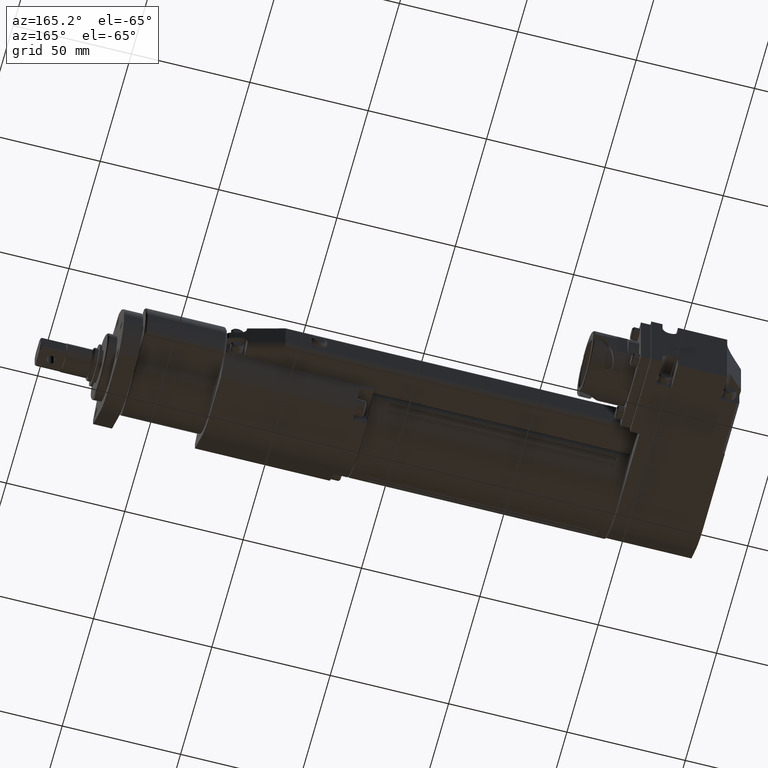
[diagram: clean part render]
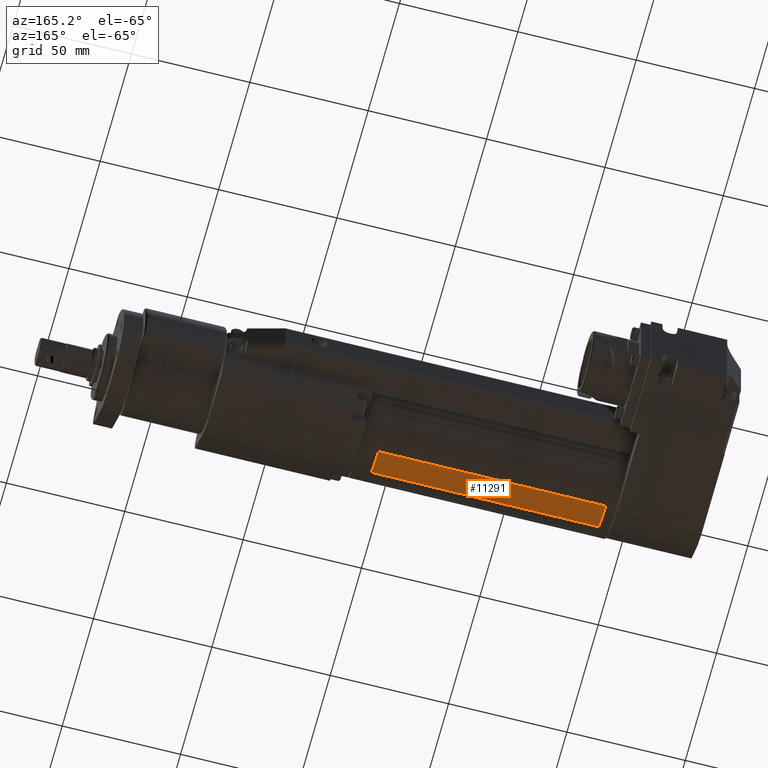
[diagram: same view with one face highlighted and labeled with its STEP entity id]
A machine part, auxiliary view. The second image highlights one B-rep face of the part: STEP entity #11291.
In plain terms, the highlighted cylindrical surface (partial cylindrical patch) has radius 18.8026 mm, axis along (1, -0, -0).
Its self-contained STEP definition (entity closure, byte-faithful):
#934 = DIRECTION ( 'NONE',  ( -1.000000000000000000, 0.0000000000000000000, 0.0000000000000000000 ) ) ;
#1134 = AXIS2_PLACEMENT_3D ( 'NONE', #11512, #4683, #12683 ) ;
#1583 = CYLINDRICAL_SURFACE ( 'NONE', #13558, 18.80264032399792700 ) ;
#1643 = ORIENTED_EDGE ( 'NONE', *, *, #2774, .F. ) ;
#1782 = DIRECTION ( 'NONE',  ( 1.000000000000000000, -0.0000000000000000000, -0.0000000000000000000 ) ) ;
#1922 = VECTOR ( 'NONE', #10858, 1000.000000000000000 ) ;
#1929 = DIRECTION ( 'NONE',  ( 1.000000000000000000, -0.0000000000000000000, -0.0000000000000000000 ) ) ;
#2291 = LINE ( 'NONE', #9720, #1922 ) ;
#2774 = EDGE_CURVE ( 'NONE', #3040, #7025, #14087, .T. ) ;
#2935 = CARTESIAN_POINT ( 'NONE',  ( -240.0000000000000300, -5.473303205611591700E-016, 1.024910428020175300 ) ) ;
#3040 = VERTEX_POINT ( 'NONE', #14790 ) ;
#4215 = VERTEX_POINT ( 'NONE', #10077 ) ;
#4683 = DIRECTION ( 'NONE',  ( -1.000000000000000000, 0.0000000000000000000, 0.0000000000000000000 ) ) ;
#4906 = AXIS2_PLACEMENT_3D ( 'NONE', #7765, #934, #8906 ) ;
#5597 = EDGE_LOOP ( 'NONE', ( #9655, #13785, #12357, #1643 ) ) ;
#6747 = CARTESIAN_POINT ( 'NONE',  ( -144.0000000000000300, -11.57606128189029700, -13.79177234348955700 ) ) ;
#7025 = VERTEX_POINT ( 'NONE', #6747 ) ;
#7646 = CARTESIAN_POINT ( 'NONE',  ( -240.0000000000000300, -5.473303205611591700E-016, -17.77772989597775300 ) ) ;
#7652 = FACE_OUTER_BOUND ( 'NONE', #5597, .T. ) ;
#7765 = CARTESIAN_POINT ( 'NONE',  ( -144.0000000000000300, -5.473303205611591700E-016, 1.024910428020175300 ) ) ;
#7994 = VECTOR ( 'NONE', #1929, 1000.000000000000000 ) ;
#8507 = EDGE_CURVE ( 'NONE', #10086, #4215, #2291, .T. ) ;
#8778 = CARTESIAN_POINT ( 'NONE',  ( -240.0000000000000300, -11.57606128189029700, -13.79177234348955700 ) ) ;
#8906 = DIRECTION ( 'NONE',  ( 0.0000000000000000000, 0.0000000000000000000, 1.000000000000000000 ) ) ;
#8996 = EDGE_CURVE ( 'NONE', #4215, #7025, #9078, .T. ) ;
#9078 = CIRCLE ( 'NONE', #4906, 18.80264032399792700 ) ;
#9655 = ORIENTED_EDGE ( 'NONE', *, *, #12932, .F. ) ;
#9720 = CARTESIAN_POINT ( 'NONE',  ( -240.0000000000000300, -5.473303205611591700E-016, -17.77772989597775300 ) ) ;
#10077 = CARTESIAN_POINT ( 'NONE',  ( -144.0000000000000300, -5.473303205611591700E-016, -17.77772989597775300 ) ) ;
#10086 = VERTEX_POINT ( 'NONE', #7646 ) ;
#10858 = DIRECTION ( 'NONE',  ( 1.000000000000000000, -0.0000000000000000000, -0.0000000000000000000 ) ) ;
#10911 = DIRECTION ( 'NONE',  ( 0.0000000000000000000, 0.0000000000000000000, -1.000000000000000000 ) ) ;
#11291 = ADVANCED_FACE ( 'NONE', ( #7652 ), #1583, .T. ) ;
#11512 = CARTESIAN_POINT ( 'NONE',  ( -240.0000000000000300, -5.473303205611591700E-016, 1.024910428020175300 ) ) ;
#12357 = ORIENTED_EDGE ( 'NONE', *, *, #8996, .T. ) ;
#12683 = DIRECTION ( 'NONE',  ( 0.0000000000000000000, 0.0000000000000000000, 1.000000000000000000 ) ) ;
#12932 = EDGE_CURVE ( 'NONE', #10086, #3040, #14783, .T. ) ;
#13558 = AXIS2_PLACEMENT_3D ( 'NONE', #2935, #1782, #10911 ) ;
#13785 = ORIENTED_EDGE ( 'NONE', *, *, #8507, .T. ) ;
#14087 = LINE ( 'NONE', #8778, #7994 ) ;
#14783 = CIRCLE ( 'NONE', #1134, 18.80264032399792700 ) ;
#14790 = CARTESIAN_POINT ( 'NONE',  ( -240.0000000000000300, -11.57606128189029700, -13.79177234348955700 ) ) ;